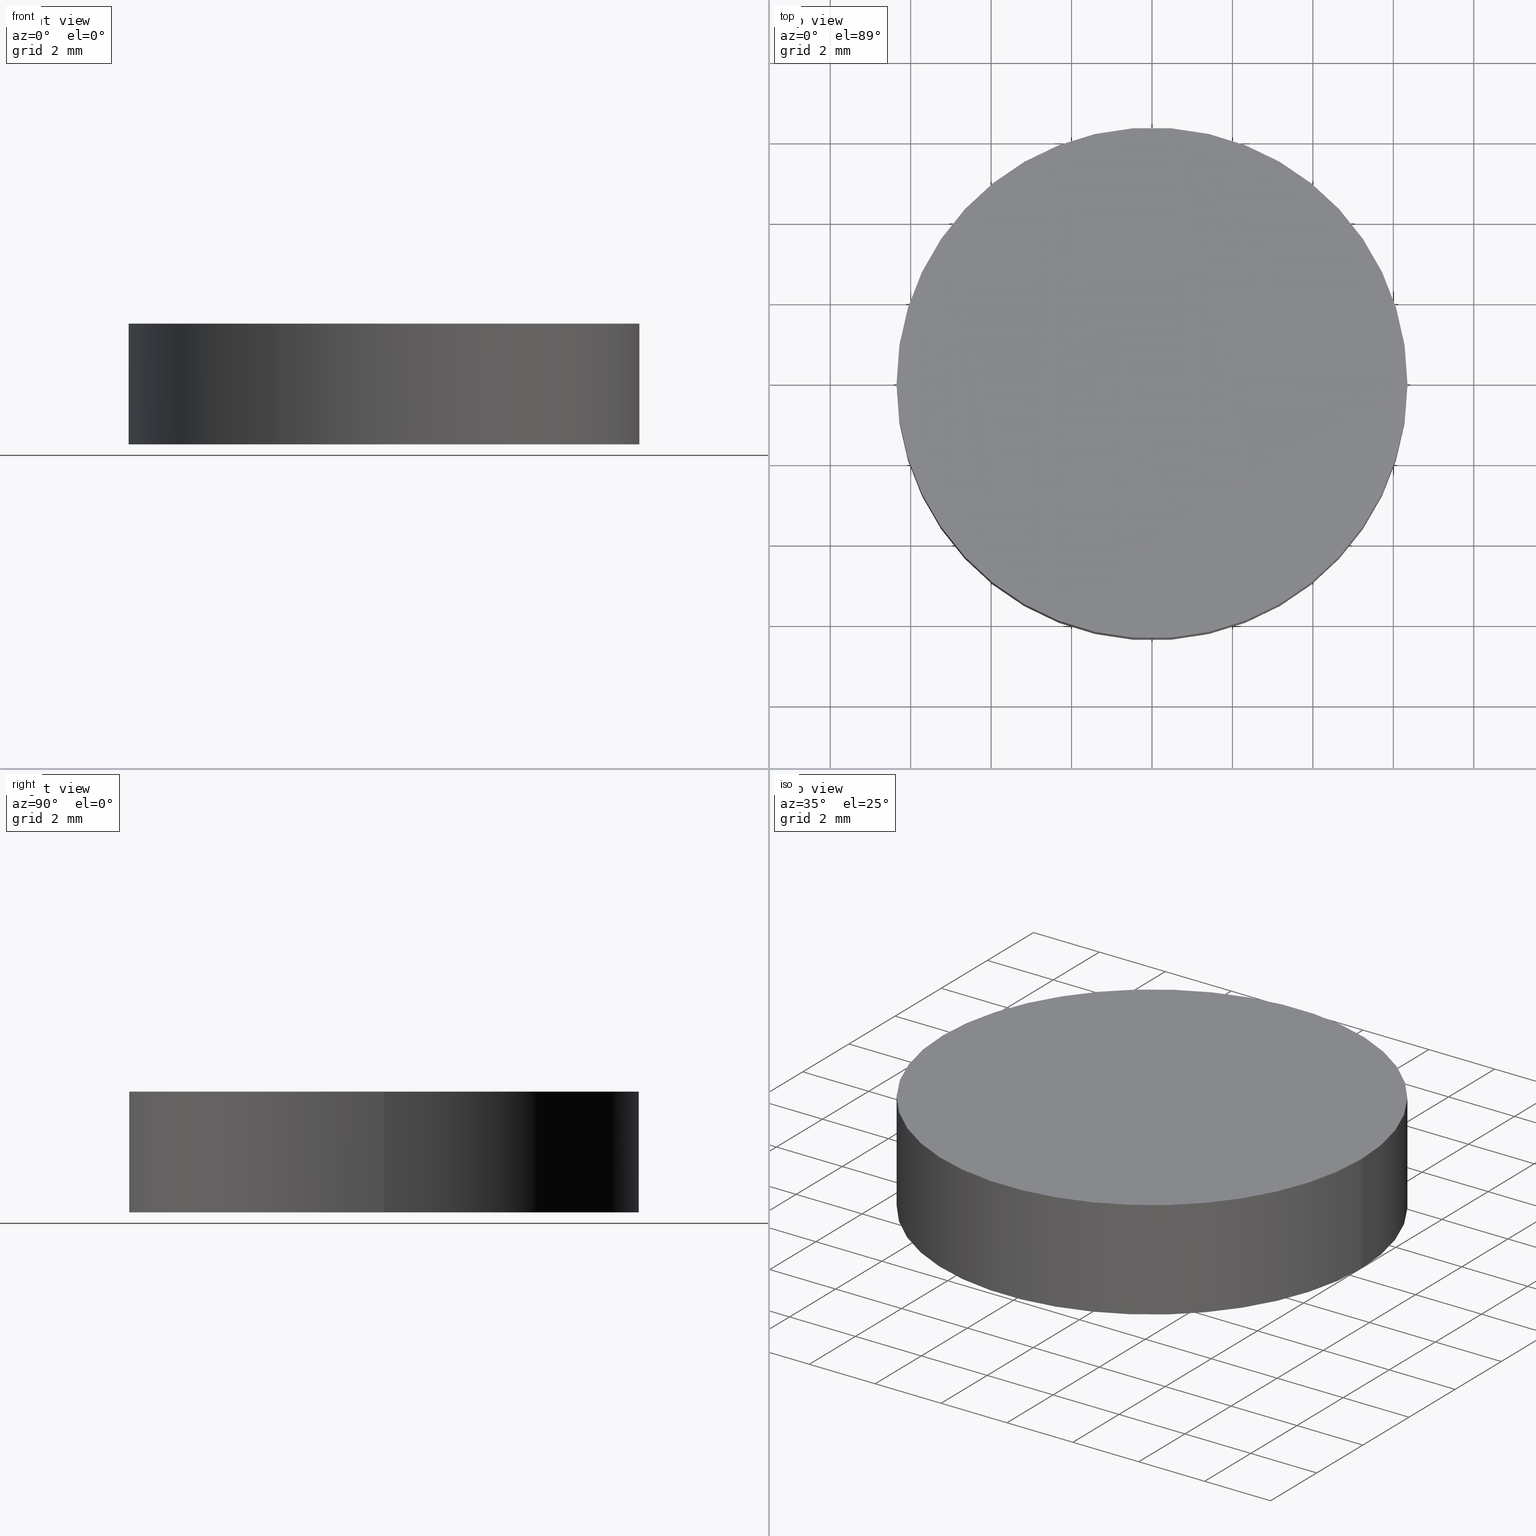
[diagram: canonical four-view strip — front | top / right | iso, engineering-drawing reading convention]
A machine part, canonical four-view strip (front | top / right | iso — engineering-drawing reading convention). The complete STEP part file that produces these views, byte-faithful:
ISO-10303-21;
HEADER;
FILE_DESCRIPTION (( 'STEP AP203' ),
    '1' );
FILE_NAME ('416003.STEP',
    '2019-08-21T06:22:08',
    ( '' ),
    ( '' ),
    'SwSTEP 2.0',
    'SolidWorks 2016',
    '' );
FILE_SCHEMA (( 'CONFIG_CONTROL_DESIGN' ));
ENDSEC;

DATA;
#1 = MECHANICAL_CONTEXT ( 'NONE', #122, 'mechanical' ) ;
#2 = AXIS2_PLACEMENT_3D ( 'NONE', #109, #226, #32 ) ;
#3 = APPLICATION_CONTEXT ( 'configuration controlled 3d designs of mechanical parts and assemblies' ) ;
#4 = AXIS2_PLACEMENT_3D ( 'NONE', #153, #41, #141 ) ;
#5 = DIRECTION ( 'NONE',  ( 0.0000000000000000000, 0.0000000000000000000, 1.000000000000000000 ) ) ;
#6 = CALENDAR_DATE ( 2019, 21, 8 ) ;
#7 = APPROVAL_STATUS ( 'not_yet_approved' ) ;
#8 = CIRCLE ( 'NONE', #135, 6.349999999999999600 ) ;
#9 = CC_DESIGN_APPROVAL ( #46, ( #185 ) ) ;
#10 = CC_DESIGN_PERSON_AND_ORGANIZATION_ASSIGNMENT ( #77, #138, ( #185 ) ) ;
#11 = UNCERTAINTY_MEASURE_WITH_UNIT (LENGTH_MEASURE( 1.000000000000000100E-005 ), #243, 'distance_accuracy_value', 'NONE');
#12 = CALENDAR_DATE ( 2019, 21, 8 ) ;
#13 = DATE_AND_TIME ( #127, #183 ) ;
#14 = PERSON_AND_ORGANIZATION ( #39, #76 ) ;
#15 = ORIENTED_EDGE ( 'NONE', *, *, #158, .T. ) ;
#16 = LOCAL_TIME ( 14, 22, 8.000000000000000000, #24 ) ;
#17 = CALENDAR_DATE ( 2019, 21, 8 ) ;
#18 = ORIENTED_EDGE ( 'NONE', *, *, #149, .F. ) ;
#19 =( NAMED_UNIT ( * ) PLANE_ANGLE_UNIT ( ) SI_UNIT ( $, .RADIAN. ) );
#20 = DIRECTION ( 'NONE',  ( 1.000000000000000000, 0.0000000000000000000, -0.0000000000000000000 ) ) ;
#21 = APPROVAL ( #61, 'δָ��' ) ;
#22 = FACE_OUTER_BOUND ( 'NONE', #47, .T. ) ;
#23 = PERSON_AND_ORGANIZATION ( #39, #76 ) ;
#24 = COORDINATED_UNIVERSAL_TIME_OFFSET ( 8, 0, .AHEAD. ) ;
#25 = VERTEX_POINT ( 'NONE', #247 ) ;
#26 = AXIS2_PLACEMENT_3D ( 'NONE', #71, #92, #228 ) ;
#27 = DATE_AND_TIME ( #84, #188 ) ;
#28 = LOCAL_TIME ( 14, 22, 8.000000000000000000, #73 ) ;
#29 = VERTEX_POINT ( 'NONE', #206 ) ;
#30 = ADVANCED_FACE ( 'NONE', ( #22 ), #167, .T. ) ;
#31 = DATE_AND_TIME ( #17, #28 ) ;
#32 = DIRECTION ( 'NONE',  ( 1.000000000000000000, 0.0000000000000000000, 0.0000000000000000000 ) ) ;
#33 = PERSON_AND_ORGANIZATION ( #39, #76 ) ;
#34 = SECURITY_CLASSIFICATION ( '', '', #123 ) ;
#35 = VERTEX_POINT ( 'NONE', #165 ) ;
#36 = LINE ( 'NONE', #178, #204 ) ;
#37 = APPLICATION_PROTOCOL_DEFINITION ( 'international standard', 'config_control_design', 1994, #3 ) ;
#38 = PERSON_AND_ORGANIZATION_ROLE ( 'design_owner' ) ;
#39 = PERSON ( 'δָ��', 'δָ��', 'δָ��', ('δָ��'), ('δָ��'), ('δָ��') ) ;
#40 = DESIGN_CONTEXT ( 'detailed design', #81, 'design' ) ;
#41 = DIRECTION ( 'NONE',  ( 0.0000000000000000000, 0.0000000000000000000, 1.000000000000000000 ) ) ;
#42 = PERSON_AND_ORGANIZATION ( #39, #76 ) ;
#43 = PERSON_AND_ORGANIZATION_ROLE ( 'creator' ) ;
#44 = AXIS2_PLACEMENT_3D ( 'NONE', #251, #133, #193 ) ;
#45 = PERSON_AND_ORGANIZATION_ROLE ( 'design_supplier' ) ;
#46 = APPROVAL ( #237, 'δָ��' ) ;
#47 = EDGE_LOOP ( 'NONE', ( #230, #15, #152, #244 ) ) ;
#48 = PERSON_AND_ORGANIZATION ( #39, #76 ) ;
#49 = PRODUCT ( '416003', '416003', '', ( #176 ) ) ;
#50 = APPROVAL_DATE_TIME ( #192, #121 ) ;
#51 = DIRECTION ( 'NONE',  ( -1.000000000000000000, 0.0000000000000000000, 0.0000000000000000000 ) ) ;
#52 = DIRECTION ( 'NONE',  ( -1.000000000000000000, 0.0000000000000000000, 0.0000000000000000000 ) ) ;
#53 = ADVANCED_FACE ( 'NONE', ( #116 ), #112, .T. ) ;
#54 = COORDINATED_UNIVERSAL_TIME_OFFSET ( 8, 0, .AHEAD. ) ;
#55 = CC_DESIGN_PERSON_AND_ORGANIZATION_ASSIGNMENT ( #14, #217, ( #205 ) ) ;
#56 = APPROVAL_DATE_TIME ( #59, #200 ) ;
#57 = ORIENTED_EDGE ( 'NONE', *, *, #149, .T. ) ;
#58 = CARTESIAN_POINT ( 'NONE',  ( 6.349999999999999600, 7.776507174585692200E-016, 3.000000000000000000 ) ) ;
#59 = DATE_AND_TIME ( #12, #97 ) ;
#60 = LOCAL_TIME ( 14, 22, 8.000000000000000000, #148 ) ;
#61 = APPROVAL_STATUS ( 'not_yet_approved' ) ;
#62 = APPLICATION_PROTOCOL_DEFINITION ( 'international standard', 'config_control_design', 1994, #122 ) ;
#63 = AXIS2_PLACEMENT_3D ( 'NONE', #125, #5, #99 ) ;
#64 = DIRECTION ( 'NONE',  ( -0.0000000000000000000, -0.0000000000000000000, -1.000000000000000000 ) ) ;
#65 = DATE_AND_TIME ( #221, #207 ) ;
#66 = CC_DESIGN_APPROVAL ( #200, ( #172 ) ) ;
#67 = PERSON_AND_ORGANIZATION_ROLE ( 'design_owner' ) ;
#68 = CIRCLE ( 'NONE', #232, 6.349999999999999600 ) ;
#69 = APPROVAL_PERSON_ORGANIZATION ( #168, #46, #252 ) ;
#70 = SHAPE_DEFINITION_REPRESENTATION ( #164, #128 ) ;
#71 = CARTESIAN_POINT ( 'NONE',  ( 0.0000000000000000000, 0.0000000000000000000, 0.0000000000000000000 ) ) ;
#72 = CIRCLE ( 'NONE', #2, 6.349999999999999600 ) ;
#73 = COORDINATED_UNIVERSAL_TIME_OFFSET ( 8, 0, .AHEAD. ) ;
#74 = ORIENTED_EDGE ( 'NONE', *, *, #179, .T. ) ;
#75 = CC_DESIGN_DATE_AND_TIME_ASSIGNMENT ( #198, #222, ( #172 ) ) ;
#76 = ORGANIZATION ( 'δָ��', 'δָ��', '' ) ;
#77 = PERSON_AND_ORGANIZATION ( #39, #76 ) ;
#78 = PERSON_AND_ORGANIZATION ( #39, #76 ) ;
#79 = ORIENTED_EDGE ( 'NONE', *, *, #139, .T. ) ;
#80 = PLANE ( 'NONE',  #142 ) ;
#81 = APPLICATION_CONTEXT ( 'configuration controlled 3d designs of mechanical parts and assemblies' ) ;
#82 = PRODUCT_RELATED_PRODUCT_CATEGORY ( 'detail', '', ( #175 ) ) ;
#83 = APPROVAL_STATUS ( 'not_yet_approved' ) ;
#84 = CALENDAR_DATE ( 2019, 21, 8 ) ;
#85 = APPROVAL_ROLE ( '' ) ;
#86 = EDGE_CURVE ( 'NONE', #25, #35, #68, .T. ) ;
#87 = CARTESIAN_POINT ( 'NONE',  ( 0.0000000000000000000, 0.0000000000000000000, 3.000000000000000000 ) ) ;
#88 = FACE_OUTER_BOUND ( 'NONE', #146, .T. ) ;
#89 = DIRECTION ( 'NONE',  ( 1.000000000000000000, 0.0000000000000000000, 0.0000000000000000000 ) ) ;
#90 = DIRECTION ( 'NONE',  ( 0.0000000000000000000, 0.0000000000000000000, 1.000000000000000000 ) ) ;
#91 = APPROVAL_PERSON_ORGANIZATION ( #140, #240, #203 ) ;
#92 = DIRECTION ( 'NONE',  ( 0.0000000000000000000, 0.0000000000000000000, 1.000000000000000000 ) ) ;
#93 = PRODUCT_DEFINITION_FORMATION_WITH_SPECIFIED_SOURCE ( '�κ�', '', #49, .NOT_KNOWN. ) ;
#94 = APPROVAL_PERSON_ORGANIZATION ( #249, #200, #100 ) ;
#95 = CC_DESIGN_DATE_AND_TIME_ASSIGNMENT ( #117, #202, ( #34 ) ) ;
#96 = CALENDAR_DATE ( 2019, 21, 8 ) ;
#97 = LOCAL_TIME ( 14, 22, 8.000000000000000000, #173 ) ;
#98 = DATE_AND_TIME ( #6, #111 ) ;
#99 = DIRECTION ( 'NONE',  ( 1.000000000000000000, 0.0000000000000000000, 0.0000000000000000000 ) ) ;
#100 = APPROVAL_ROLE ( '' ) ;
#101 = LOCAL_TIME ( 14, 22, 8.000000000000000000, #213 ) ;
#102 = APPROVAL_ROLE ( '' ) ;
#103 = CC_DESIGN_PERSON_AND_ORGANIZATION_ASSIGNMENT ( #42, #181, ( #34 ) ) ;
#104 = DIRECTION ( 'NONE',  ( 0.0000000000000000000, 0.0000000000000000000, 1.000000000000000000 ) ) ;
#105 = DIRECTION ( 'NONE',  ( -0.0000000000000000000, -0.0000000000000000000, -1.000000000000000000 ) ) ;
#106 = PRODUCT_RELATED_PRODUCT_CATEGORY ( 'detail', '', ( #49 ) ) ;
#107 = PERSON_AND_ORGANIZATION ( #39, #76 ) ;
#108 = AXIS2_PLACEMENT_3D ( 'NONE', #190, #130, #51 ) ;
#109 = CARTESIAN_POINT ( 'NONE',  ( 0.0000000000000000000, 0.0000000000000000000, 3.000000000000000000 ) ) ;
#110 = ORIENTED_EDGE ( 'NONE', *, *, #86, .F. ) ;
#111 = LOCAL_TIME ( 14, 22, 8.000000000000000000, #147 ) ;
#112 = CYLINDRICAL_SURFACE ( 'NONE', #108, 6.349999999999999600 ) ;
#113 = PLANE ( 'NONE',  #44 ) ;
#114 = CC_DESIGN_SECURITY_CLASSIFICATION ( #34, ( #93 ) ) ;
#115 = APPROVAL_DATE_TIME ( #98, #201 ) ;
#116 = FACE_OUTER_BOUND ( 'NONE', #143, .T. ) ;
#117 = DATE_AND_TIME ( #134, #180 ) ;
#118 = APPLICATION_PROTOCOL_DEFINITION ( 'international standard', 'config_control_design', 1994, #219 ) ;
#119 = DESIGN_CONTEXT ( 'detailed design', #3, 'design' ) ;
#120 = APPROVAL_STATUS ( 'not_yet_approved' ) ;
#121 = APPROVAL ( #120, 'δָ��' ) ;
#122 = APPLICATION_CONTEXT ( 'configuration controlled 3d designs of mechanical parts and assemblies' ) ;
#123 = SECURITY_CLASSIFICATION_LEVEL ( 'unclassified' ) ;
#124 = CC_DESIGN_APPROVAL ( #21, ( #205 ) ) ;
#125 = CARTESIAN_POINT ( 'NONE',  ( 0.0000000000000000000, 0.0000000000000000000, 0.0000000000000000000 ) ) ;
#126 = VECTOR ( 'NONE', #214, 1000.000000000000000 ) ;
#127 = CALENDAR_DATE ( 2019, 21, 8 ) ;
#128 = ADVANCED_BREP_SHAPE_REPRESENTATION ( '416003', ( #177, #63 ), #248 ) ;
#129 = APPROVAL_DATE_TIME ( #31, #21 ) ;
#130 = DIRECTION ( 'NONE',  ( -0.0000000000000000000, -0.0000000000000000000, -1.000000000000000000 ) ) ;
#131 = PERSON_AND_ORGANIZATION ( #39, #76 ) ;
#132 = CC_DESIGN_APPROVAL ( #121, ( #93 ) ) ;
#133 = DIRECTION ( 'NONE',  ( 0.0000000000000000000, 0.0000000000000000000, 1.000000000000000000 ) ) ;
#134 = CALENDAR_DATE ( 2019, 21, 8 ) ;
#135 = AXIS2_PLACEMENT_3D ( 'NONE', #87, #104, #236 ) ;
#136 = CLOSED_SHELL ( 'NONE', ( #30, #53, #209, #145 ) ) ;
#137 = CARTESIAN_POINT ( 'NONE',  ( 0.0000000000000000000, 0.0000000000000000000, 3.000000000000000000 ) ) ;
#138 = PERSON_AND_ORGANIZATION_ROLE ( 'creator' ) ;
#139 = EDGE_CURVE ( 'NONE', #184, #29, #72, .T. ) ;
#140 = PERSON_AND_ORGANIZATION ( #39, #76 ) ;
#141 = DIRECTION ( 'NONE',  ( 1.000000000000000000, 0.0000000000000000000, 0.0000000000000000000 ) ) ;
#142 = AXIS2_PLACEMENT_3D ( 'NONE', #137, #253, #20 ) ;
#143 = EDGE_LOOP ( 'NONE', ( #159, #211, #235, #57 ) ) ;
#144 = PERSON_AND_ORGANIZATION ( #39, #76 ) ;
#145 = ADVANCED_FACE ( 'NONE', ( #225 ), #113, .F. ) ;
#146 = EDGE_LOOP ( 'NONE', ( #79, #74 ) ) ;
#147 = COORDINATED_UNIVERSAL_TIME_OFFSET ( 8, 0, .AHEAD. ) ;
#148 = COORDINATED_UNIVERSAL_TIME_OFFSET ( 8, 0, .AHEAD. ) ;
#149 = EDGE_CURVE ( 'NONE', #35, #25, #215, .T. ) ;
#150 = CC_DESIGN_PERSON_AND_ORGANIZATION_ASSIGNMENT ( #160, #157, ( #189 ) ) ;
#151 = CC_DESIGN_PERSON_AND_ORGANIZATION_ASSIGNMENT ( #48, #43, ( #172 ) ) ;
#152 = ORIENTED_EDGE ( 'NONE', *, *, #86, .T. ) ;
#153 = CARTESIAN_POINT ( 'NONE',  ( 0.0000000000000000000, 0.0000000000000000000, 0.0000000000000000000 ) ) ;
#154 = DATE_TIME_ROLE ( 'classification_date' ) ;
#155 = APPROVAL_PERSON_ORGANIZATION ( #144, #121, #102 ) ;
#156 = APPROVAL_ROLE ( '' ) ;
#157 = PERSON_AND_ORGANIZATION_ROLE ( 'creator' ) ;
#158 = EDGE_CURVE ( 'NONE', #29, #25, #161, .T. ) ;
#159 = ORIENTED_EDGE ( 'NONE', *, *, #158, .F. ) ;
#160 = PERSON_AND_ORGANIZATION ( #39, #76 ) ;
#161 = LINE ( 'NONE', #58, #126 ) ;
#162 = COORDINATED_UNIVERSAL_TIME_OFFSET ( 8, 0, .AHEAD. ) ;
#163 = APPROVAL_PERSON_ORGANIZATION ( #231, #201, #156 ) ;
#164 = PRODUCT_DEFINITION_SHAPE ( 'NONE', 'NONE',  #172 ) ;
#165 = CARTESIAN_POINT ( 'NONE',  ( -6.349999999999999600, 0.0000000000000000000, 0.0000000000000000000 ) ) ;
#166 = CARTESIAN_POINT ( 'NONE',  ( 0.0000000000000000000, 0.0000000000000000000, 3.000000000000000000 ) ) ;
#167 = CYLINDRICAL_SURFACE ( 'NONE', #246, 6.349999999999999600 ) ;
#168 = PERSON_AND_ORGANIZATION ( #39, #76 ) ;
#169 = CALENDAR_DATE ( 2019, 21, 8 ) ;
#170 = APPROVAL_PERSON_ORGANIZATION ( #78, #21, #85 ) ;
#171 = PERSON_AND_ORGANIZATION ( #39, #76 ) ;
#172 = PRODUCT_DEFINITION ( 'δ֪', '', #93, #40 ) ;
#173 = COORDINATED_UNIVERSAL_TIME_OFFSET ( 8, 0, .AHEAD. ) ;
#174 = PERSON_AND_ORGANIZATION_ROLE ( 'design_supplier' ) ;
#175 = PRODUCT ( '416003', '416003', '', ( #1 ) ) ;
#176 = MECHANICAL_CONTEXT ( 'NONE', #219, 'mechanical' ) ;
#177 = MANIFOLD_SOLID_BREP ( '͹̨-����1', #136 ) ;
#178 = CARTESIAN_POINT ( 'NONE',  ( -6.349999999999999600, 0.0000000000000000000, 3.000000000000000000 ) ) ;
#179 = EDGE_CURVE ( 'NONE', #29, #184, #8, .T. ) ;
#180 = LOCAL_TIME ( 14, 22, 8.000000000000000000, #245 ) ;
#181 = PERSON_AND_ORGANIZATION_ROLE ( 'classification_officer' ) ;
#182 = CC_DESIGN_DATE_AND_TIME_ASSIGNMENT ( #216, #238, ( #185 ) ) ;
#183 = LOCAL_TIME ( 14, 22, 8.000000000000000000, #162 ) ;
#184 = VERTEX_POINT ( 'NONE', #223 ) ;
#185 = PRODUCT_DEFINITION ( 'δ֪', '', #189, #119 ) ;
#186 = CARTESIAN_POINT ( 'NONE',  ( 0.0000000000000000000, 0.0000000000000000000, 0.0000000000000000000 ) ) ;
#187 = CC_DESIGN_PERSON_AND_ORGANIZATION_ASSIGNMENT ( #171, #38, ( #49 ) ) ;
#188 = LOCAL_TIME ( 14, 22, 8.000000000000000000, #239 ) ;
#189 = PRODUCT_DEFINITION_FORMATION_WITH_SPECIFIED_SOURCE ( '�κ�', '', #175, .NOT_KNOWN. ) ;
#190 = CARTESIAN_POINT ( 'NONE',  ( 0.0000000000000000000, 0.0000000000000000000, 3.000000000000000000 ) ) ;
#191 = CC_DESIGN_PERSON_AND_ORGANIZATION_ASSIGNMENT ( #107, #174, ( #189 ) ) ;
#192 = DATE_AND_TIME ( #96, #101 ) ;
#193 = DIRECTION ( 'NONE',  ( 1.000000000000000000, 0.0000000000000000000, -0.0000000000000000000 ) ) ;
#194 = CC_DESIGN_SECURITY_CLASSIFICATION ( #205, ( #189 ) ) ;
#195 = EDGE_LOOP ( 'NONE', ( #18, #110 ) ) ;
#196 = SECURITY_CLASSIFICATION_LEVEL ( 'unclassified' ) ;
#197 = APPROVAL_STATUS ( 'not_yet_approved' ) ;
#198 = DATE_AND_TIME ( #250, #60 ) ;
#199 =( NAMED_UNIT ( * ) SI_UNIT ( $, .STERADIAN. ) SOLID_ANGLE_UNIT ( ) );
#200 = APPROVAL ( #83, 'δָ��' ) ;
#201 = APPROVAL ( #197, 'δָ��' ) ;
#202 = DATE_TIME_ROLE ( 'classification_date' ) ;
#203 = APPROVAL_ROLE ( '' ) ;
#204 = VECTOR ( 'NONE', #64, 1000.000000000000000 ) ;
#205 = SECURITY_CLASSIFICATION ( '', '', #196 ) ;
#206 = CARTESIAN_POINT ( 'NONE',  ( 6.349999999999999600, 7.776507174585692200E-016, 3.000000000000000000 ) ) ;
#207 = LOCAL_TIME ( 14, 22, 8.000000000000000000, #54 ) ;
#208 = CC_DESIGN_PERSON_AND_ORGANIZATION_ASSIGNMENT ( #23, #67, ( #175 ) ) ;
#209 = ADVANCED_FACE ( 'NONE', ( #88 ), #80, .T. ) ;
#210 = CC_DESIGN_PERSON_AND_ORGANIZATION_ASSIGNMENT ( #33, #241, ( #93 ) ) ;
#211 = ORIENTED_EDGE ( 'NONE', *, *, #139, .F. ) ;
#212 = PRODUCT_DEFINITION_SHAPE ( 'NONE', 'NONE',  #185 ) ;
#213 = COORDINATED_UNIVERSAL_TIME_OFFSET ( 8, 0, .AHEAD. ) ;
#214 = DIRECTION ( 'NONE',  ( -0.0000000000000000000, -0.0000000000000000000, -1.000000000000000000 ) ) ;
#215 = CIRCLE ( 'NONE', #26, 6.349999999999999600 ) ;
#216 = DATE_AND_TIME ( #169, #16 ) ;
#217 = PERSON_AND_ORGANIZATION_ROLE ( 'classification_officer' ) ;
#218 = APPLICATION_PROTOCOL_DEFINITION ( 'international standard', 'config_control_design', 1994, #81 ) ;
#219 = APPLICATION_CONTEXT ( 'configuration controlled 3d designs of mechanical parts and assemblies' ) ;
#220 = EDGE_CURVE ( 'NONE', #184, #35, #36, .T. ) ;
#221 = CALENDAR_DATE ( 2019, 21, 8 ) ;
#222 = DATE_TIME_ROLE ( 'creation_date' ) ;
#223 = CARTESIAN_POINT ( 'NONE',  ( -6.349999999999999600, 0.0000000000000000000, 3.000000000000000000 ) ) ;
#224 = CC_DESIGN_APPROVAL ( #240, ( #34 ) ) ;
#225 = FACE_OUTER_BOUND ( 'NONE', #195, .T. ) ;
#226 = DIRECTION ( 'NONE',  ( 0.0000000000000000000, 0.0000000000000000000, 1.000000000000000000 ) ) ;
#227 = CC_DESIGN_PERSON_AND_ORGANIZATION_ASSIGNMENT ( #131, #45, ( #93 ) ) ;
#228 = DIRECTION ( 'NONE',  ( 1.000000000000000000, 0.0000000000000000000, 0.0000000000000000000 ) ) ;
#229 = CC_DESIGN_DATE_AND_TIME_ASSIGNMENT ( #65, #154, ( #205 ) ) ;
#230 = ORIENTED_EDGE ( 'NONE', *, *, #179, .F. ) ;
#231 = PERSON_AND_ORGANIZATION ( #39, #76 ) ;
#232 = AXIS2_PLACEMENT_3D ( 'NONE', #186, #90, #89 ) ;
#233 = APPROVAL_DATE_TIME ( #27, #240 ) ;
#234 = APPROVAL_DATE_TIME ( #13, #46 ) ;
#235 = ORIENTED_EDGE ( 'NONE', *, *, #220, .T. ) ;
#236 = DIRECTION ( 'NONE',  ( 1.000000000000000000, 0.0000000000000000000, 0.0000000000000000000 ) ) ;
#237 = APPROVAL_STATUS ( 'not_yet_approved' ) ;
#238 = DATE_TIME_ROLE ( 'creation_date' ) ;
#239 = COORDINATED_UNIVERSAL_TIME_OFFSET ( 8, 0, .AHEAD. ) ;
#240 = APPROVAL ( #7, 'δָ��' ) ;
#241 = PERSON_AND_ORGANIZATION_ROLE ( 'creator' ) ;
#242 = CC_DESIGN_APPROVAL ( #201, ( #189 ) ) ;
#243 =( LENGTH_UNIT ( ) NAMED_UNIT ( * ) SI_UNIT ( .MILLI., .METRE. ) );
#244 = ORIENTED_EDGE ( 'NONE', *, *, #220, .F. ) ;
#245 = COORDINATED_UNIVERSAL_TIME_OFFSET ( 8, 0, .AHEAD. ) ;
#246 = AXIS2_PLACEMENT_3D ( 'NONE', #166, #105, #52 ) ;
#247 = CARTESIAN_POINT ( 'NONE',  ( 6.349999999999999600, 7.776507174585692200E-016, 0.0000000000000000000 ) ) ;
#248 =( GEOMETRIC_REPRESENTATION_CONTEXT ( 3 ) GLOBAL_UNCERTAINTY_ASSIGNED_CONTEXT ( ( #11 ) ) GLOBAL_UNIT_ASSIGNED_CONTEXT ( ( #243, #19, #199 ) ) REPRESENTATION_CONTEXT ( 'NONE', 'WORKASPACE' ) );
#249 = PERSON_AND_ORGANIZATION ( #39, #76 ) ;
#250 = CALENDAR_DATE ( 2019, 21, 8 ) ;
#251 = CARTESIAN_POINT ( 'NONE',  ( 0.0000000000000000000, 0.0000000000000000000, 0.0000000000000000000 ) ) ;
#252 = APPROVAL_ROLE ( '' ) ;
#253 = DIRECTION ( 'NONE',  ( 0.0000000000000000000, 0.0000000000000000000, 1.000000000000000000 ) ) ;
ENDSEC;
END-ISO-10303-21;
